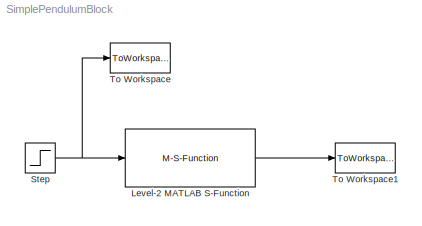
MODEL SimplePendulumBlock
KIND model
BLOCK [M-S-Function] Level-2 MATLAB S-Function
  FunctionName = SimplePendulum
  Parameters = Ip mp lc
  Ports = [1, 1]
  SID = 1
BLOCK [Step] Step
  SID = 2
  SampleTime = 0
BLOCK [ToWorkspace] To Workspace
  MaxDataPoints = inf
  Ports = [1]
  SID = 3
  SampleTime = -1
  SaveFormat = Timeseries
  VariableName = esignal
BLOCK [ToWorkspace] To Workspace1
  MaxDataPoints = inf
  Ports = [1]
  SID = 4
  SampleTime = -1
  SaveFormat = Timeseries
  VariableName = y1
LINE Level-2 MATLAB S-Function:1 -> To Workspace1:1
NET Step:1 -> Level-2 MATLAB S-Function:1, To Workspace:1
note: NET lines group one-source signal fan-out (src -> all destinations, sorted); 1:1 wires keep LINE
